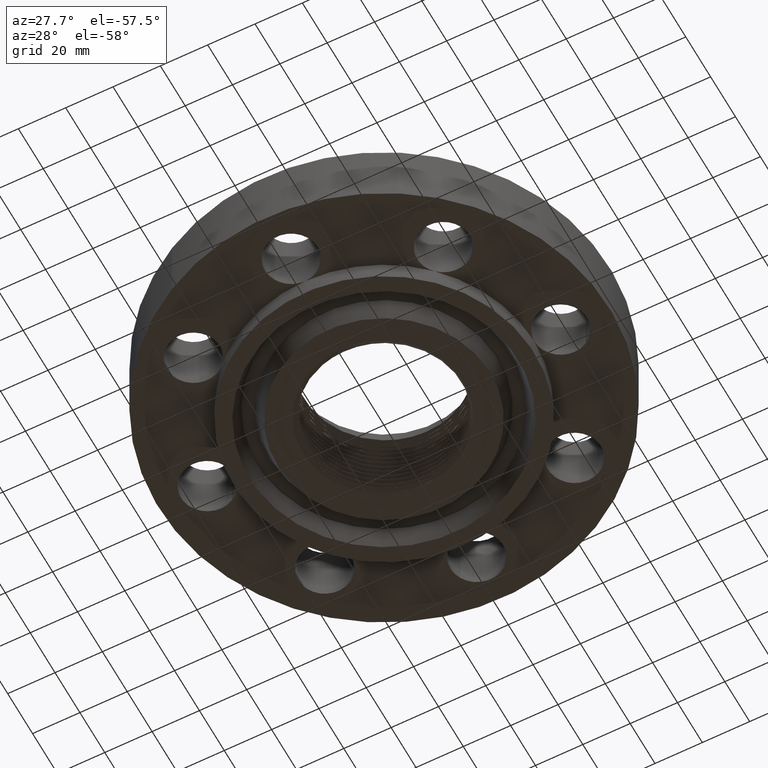
[diagram: clean part render]
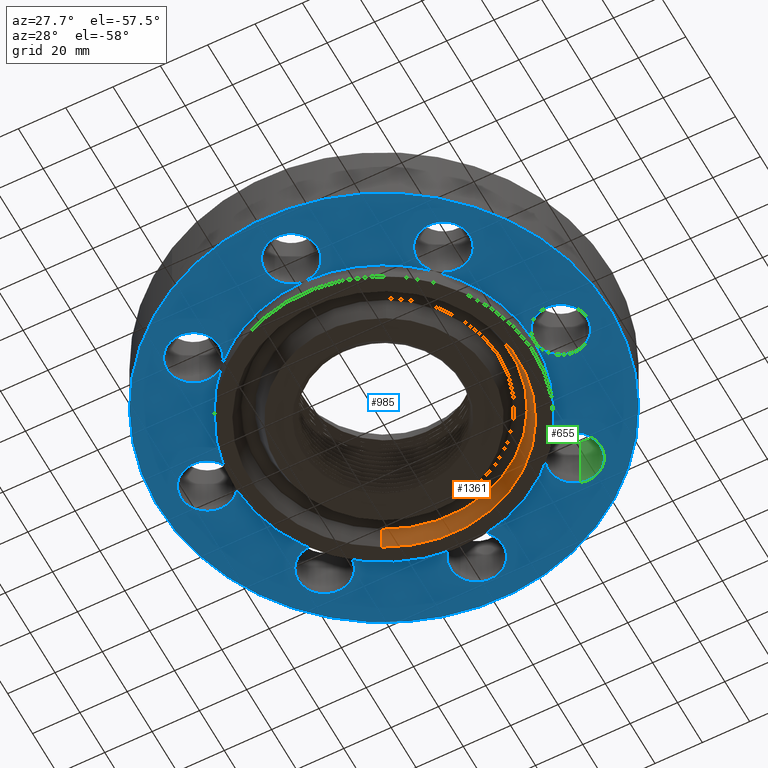
[diagram: same view with three faces highlighted in distinct colors, each labeled with its STEP entity id]
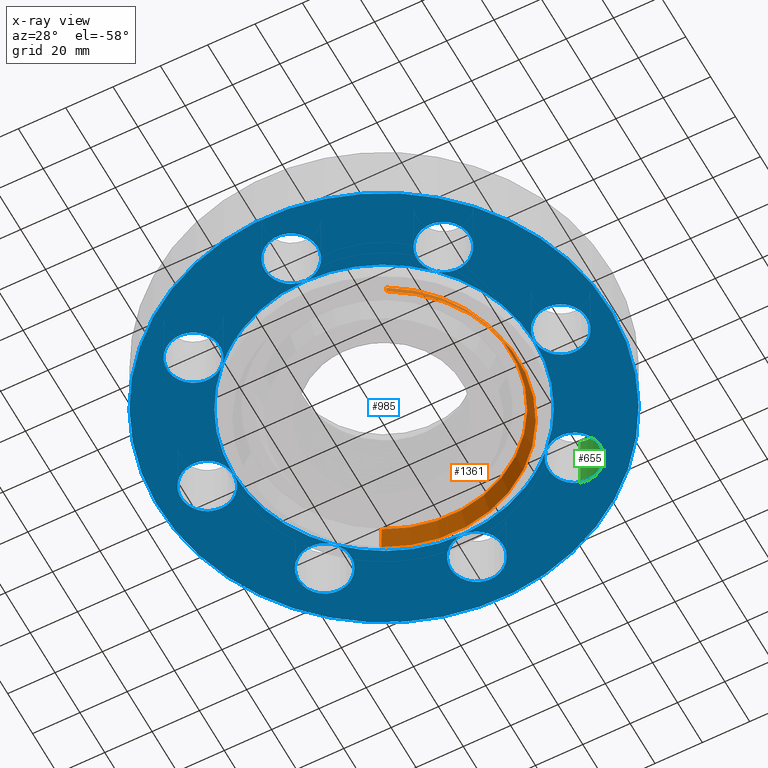
[diagram: x-ray of the same camera — body ghosted, the three highlighted faces saturated]
A machine part, auxiliary view with three faces highlighted in distinct colors.
The next image is the same camera in x-ray (body ghosted, the three faces saturated) — at least one of them is partly hidden behind the body in this view.
Their STEP definitions:

[orange] entity #1361 — the highlighted conical surface has half-angle 23 deg.
#388=AXIS2_PLACEMENT_3D('Circle Axis2P3D',#386,#387,$) ;
#1296=AXIS2_PLACEMENT_3D('Cone Axis2P3D',#1293,#1294,#1295) ;
#1317=AXIS2_PLACEMENT_3D('Circle Axis2P3D',#1315,#1316,$) ;
#381=CARTESIAN_POINT('Vertex',(1.07121643782,-1.96084853673,-0.312500000001)) ;
#383=CARTESIAN_POINT('Vertex',(-1.07121643782,1.96084853673,-0.312500000001)) ;
#386=CARTESIAN_POINT('Axis2P3D Location',(6.99353086378E-017,5.59482469102E-016,-0.312500000001)) ;
#1262=CARTESIAN_POINT('Vertex',(-1.01149606344,1.85153112468,-0.0190396522348)) ;
#1264=CARTESIAN_POINT('Vertex',(1.01149606344,-1.85153112468,-0.0190396522348)) ;
#1293=CARTESIAN_POINT('Axis2P3D Location',(0.,0.,-0.0190396522348)) ;
#1298=CARTESIAN_POINT('Line Origine',(-1.04135625063,1.90618983071,-0.165769826118)) ;
#1303=CARTESIAN_POINT('Line Origine',(1.04135625063,-1.90618983071,-0.165769826118)) ;
#1315=CARTESIAN_POINT('Axis2P3D Location',(0.,0.,-0.0190396522348)) ;
#387=DIRECTION('Axis2P3D Direction',(0.,0.,-0.0393700787402)) ;
#1294=DIRECTION('Axis2P3D Direction',(-0.,-0.,-0.0393700787402)) ;
#1295=DIRECTION('Axis2P3D XDirection',(-0.0188750212049,0.0345504945626,0.)) ;
#1299=DIRECTION('Vector Direction',(-0.00737505833565,0.0134999537303,-0.0362403485611)) ;
#1304=DIRECTION('Vector Direction',(0.00737505833565,-0.0134999537303,-0.0362403485611)) ;
#1316=DIRECTION('Axis2P3D Direction',(0.,0.,0.0393700787402)) ;
#1300=VECTOR('Line Direction',#1299,0.0393700787402) ;
#1305=VECTOR('Line Direction',#1304,0.0393700787402) ;
#1356=ORIENTED_EDGE('',*,*,#390,.T.) ;
#1357=ORIENTED_EDGE('',*,*,#1307,.T.) ;
#1358=ORIENTED_EDGE('',*,*,#1319,.T.) ;
#1359=ORIENTED_EDGE('',*,*,#1302,.F.) ;
#1361=ADVANCED_FACE('PartBody',(#1360),#1297,.F.) ;
#389=CIRCLE('generated circle',#388,2.23437500001) ;
#1318=CIRCLE('generated circle',#1317,2.10980847283) ;
#1297=CONICAL_SURFACE('Cone',#1296,2.10980847283,0.401425727959) ;
#390=EDGE_CURVE('',#384,#382,#389,.T.) ;
#1302=EDGE_CURVE('',#384,#1263,#1301,.F.) ;
#1307=EDGE_CURVE('',#382,#1265,#1306,.F.) ;
#1319=EDGE_CURVE('',#1265,#1263,#1318,.T.) ;
#1355=EDGE_LOOP('',(#1356,#1357,#1358,#1359)) ;
#1360=FACE_OUTER_BOUND('',#1355,.T.) ;
#1301=LINE('Line',#1298,#1300) ;
#1306=LINE('Line',#1303,#1305) ;
#382=VERTEX_POINT('',#381) ;
#384=VERTEX_POINT('',#383) ;
#1263=VERTEX_POINT('',#1262) ;
#1265=VERTEX_POINT('',#1264) ;

[blue] entity #985 — the highlighted planar face has unit normal (0, 0, -1).
#412=AXIS2_PLACEMENT_3D('Circle Axis2P3D',#410,#411,$) ;
#419=AXIS2_PLACEMENT_3D('Circle Axis2P3D',#417,#418,$) ;
#446=AXIS2_PLACEMENT_3D('Circle Axis2P3D',#444,#445,$) ;
#477=AXIS2_PLACEMENT_3D('Circle Axis2P3D',#475,#476,$) ;
#484=AXIS2_PLACEMENT_3D('Circle Axis2P3D',#482,#483,$) ;
#511=AXIS2_PLACEMENT_3D('Circle Axis2P3D',#509,#510,$) ;
#542=AXIS2_PLACEMENT_3D('Circle Axis2P3D',#540,#541,$) ;
#549=AXIS2_PLACEMENT_3D('Circle Axis2P3D',#547,#548,$) ;
#576=AXIS2_PLACEMENT_3D('Circle Axis2P3D',#574,#575,$) ;
#607=AXIS2_PLACEMENT_3D('Circle Axis2P3D',#605,#606,$) ;
#614=AXIS2_PLACEMENT_3D('Circle Axis2P3D',#612,#613,$) ;
#641=AXIS2_PLACEMENT_3D('Circle Axis2P3D',#639,#640,$) ;
#672=AXIS2_PLACEMENT_3D('Circle Axis2P3D',#670,#671,$) ;
#679=AXIS2_PLACEMENT_3D('Circle Axis2P3D',#677,#678,$) ;
#706=AXIS2_PLACEMENT_3D('Circle Axis2P3D',#704,#705,$) ;
#737=AXIS2_PLACEMENT_3D('Circle Axis2P3D',#735,#736,$) ;
#744=AXIS2_PLACEMENT_3D('Circle Axis2P3D',#742,#743,$) ;
#771=AXIS2_PLACEMENT_3D('Circle Axis2P3D',#769,#770,$) ;
#802=AXIS2_PLACEMENT_3D('Circle Axis2P3D',#800,#801,$) ;
#809=AXIS2_PLACEMENT_3D('Circle Axis2P3D',#807,#808,$) ;
#836=AXIS2_PLACEMENT_3D('Circle Axis2P3D',#834,#835,$) ;
#854=AXIS2_PLACEMENT_3D('Plane Axis2P3D',#851,#852,#853) ;
#858=AXIS2_PLACEMENT_3D('Circle Axis2P3D',#856,#857,$) ;
#867=AXIS2_PLACEMENT_3D('Circle Axis2P3D',#865,#866,$) ;
#876=AXIS2_PLACEMENT_3D('Circle Axis2P3D',#874,#875,$) ;
#881=AXIS2_PLACEMENT_3D('Circle Axis2P3D',#879,#880,$) ;
#888=AXIS2_PLACEMENT_3D('Circle Axis2P3D',#886,#887,$) ;
#895=AXIS2_PLACEMENT_3D('Circle Axis2P3D',#893,#894,$) ;
#902=AXIS2_PLACEMENT_3D('Circle Axis2P3D',#900,#901,$) ;
#909=AXIS2_PLACEMENT_3D('Circle Axis2P3D',#907,#908,$) ;
#914=AXIS2_PLACEMENT_3D('Circle Axis2P3D',#912,#913,$) ;
#919=AXIS2_PLACEMENT_3D('Circle Axis2P3D',#917,#918,$) ;
#924=AXIS2_PLACEMENT_3D('Circle Axis2P3D',#922,#923,$) ;
#929=AXIS2_PLACEMENT_3D('Circle Axis2P3D',#927,#928,$) ;
#936=AXIS2_PLACEMENT_3D('Circle Axis2P3D',#934,#935,$) ;
#941=AXIS2_PLACEMENT_3D('Circle Axis2P3D',#939,#940,$) ;
#946=AXIS2_PLACEMENT_3D('Circle Axis2P3D',#944,#945,$) ;
#405=CARTESIAN_POINT('Vertex',(2.72905276303,-0.386136327233,0.)) ;
#410=CARTESIAN_POINT('Axis2P3D Location',(2.94000000001,-3.79459389627E-016,0.)) ;
#414=CARTESIAN_POINT('Vertex',(2.50000000001,2.79741234551E-016,0.)) ;
#417=CARTESIAN_POINT('Axis2P3D Location',(2.94000000001,-3.79459389627E-016,0.)) ;
#421=CARTESIAN_POINT('Vertex',(3.150947237,0.386136327233,0.)) ;
#444=CARTESIAN_POINT('Axis2P3D Location',(2.94000000001,-3.79459389627E-016,0.)) ;
#470=CARTESIAN_POINT('Vertex',(-2.2027713304,-1.6566920995,0.)) ;
#475=CARTESIAN_POINT('Axis2P3D Location',(-2.0788939367,-2.0788939367,0.)) ;
#479=CARTESIAN_POINT('Vertex',(-1.76776695297,-1.76776695297,0.)) ;
#482=CARTESIAN_POINT('Axis2P3D Location',(-2.0788939367,-2.0788939367,0.)) ;
#486=CARTESIAN_POINT('Vertex',(-1.95501654299,-2.50109577389,0.)) ;
#509=CARTESIAN_POINT('Axis2P3D Location',(-2.0788939367,-2.0788939367,0.)) ;
#535=CARTESIAN_POINT('Vertex',(-2.72905276303,0.386136327233,0.)) ;
#540=CARTESIAN_POINT('Axis2P3D Location',(-2.94000000001,-5.40069238426E-016,0.)) ;
#544=CARTESIAN_POINT('Vertex',(-2.50000000001,-8.39223703654E-016,0.)) ;
#547=CARTESIAN_POINT('Axis2P3D Location',(-2.94000000001,-5.40069238426E-016,0.)) ;
#551=CARTESIAN_POINT('Vertex',(-3.150947237,-0.386136327233,0.)) ;
#574=CARTESIAN_POINT('Axis2P3D Location',(-2.94000000001,-5.40069238426E-016,0.)) ;
#600=CARTESIAN_POINT('Vertex',(2.2027713304,1.6566920995,0.)) ;
#605=CARTESIAN_POINT('Axis2P3D Location',(2.0788939367,2.0788939367,0.)) ;
#609=CARTESIAN_POINT('Vertex',(1.76776695297,1.76776695297,0.)) ;
#612=CARTESIAN_POINT('Axis2P3D Location',(2.0788939367,2.0788939367,0.)) ;
#616=CARTESIAN_POINT('Vertex',(1.95501654299,2.50109577389,0.)) ;
#639=CARTESIAN_POINT('Axis2P3D Location',(2.0788939367,2.0788939367,0.)) ;
#665=CARTESIAN_POINT('Vertex',(1.6566920995,-2.2027713304,0.)) ;
#670=CARTESIAN_POINT('Axis2P3D Location',(2.0788939367,-2.0788939367,0.)) ;
#674=CARTESIAN_POINT('Vertex',(1.76776695297,-1.76776695297,0.)) ;
#677=CARTESIAN_POINT('Axis2P3D Location',(2.0788939367,-2.0788939367,0.)) ;
#681=CARTESIAN_POINT('Vertex',(2.50109577389,-1.95501654299,0.)) ;
#704=CARTESIAN_POINT('Axis2P3D Location',(2.0788939367,-2.0788939367,0.)) ;
#730=CARTESIAN_POINT('Vertex',(-1.6566920995,2.2027713304,0.)) ;
#735=CARTESIAN_POINT('Axis2P3D Location',(-2.0788939367,2.0788939367,0.)) ;
#739=CARTESIAN_POINT('Vertex',(-1.76776695297,1.76776695297,0.)) ;
#742=CARTESIAN_POINT('Axis2P3D Location',(-2.0788939367,2.0788939367,0.)) ;
#746=CARTESIAN_POINT('Vertex',(-2.50109577389,1.95501654299,0.)) ;
#769=CARTESIAN_POINT('Axis2P3D Location',(-2.0788939367,2.0788939367,0.)) ;
#795=CARTESIAN_POINT('Vertex',(-0.386136327233,-2.72905276303,0.)) ;
#800=CARTESIAN_POINT('Axis2P3D Location',(3.60046158951E-016,-2.94000000001,0.)) ;
#804=CARTESIAN_POINT('Vertex',(3.09971815926E-016,-2.50000000001,0.)) ;
#807=CARTESIAN_POINT('Axis2P3D Location',(3.60046158951E-016,-2.94000000001,0.)) ;
#811=CARTESIAN_POINT('Vertex',(0.386136327233,-3.150947237,0.)) ;
#834=CARTESIAN_POINT('Axis2P3D Location',(3.60046158951E-016,-2.94000000001,0.)) ;
#851=CARTESIAN_POINT('Axis2P3D Location',(0.,2.50000000001,0.)) ;
#856=CARTESIAN_POINT('Axis2P3D Location',(0.,0.,0.)) ;
#860=CARTESIAN_POINT('Vertex',(-1.79784576977,-3.2909346071,4.19611851827E-016)) ;
#862=CARTESIAN_POINT('Vertex',(1.79784576977,3.2909346071,4.19611851827E-016)) ;
#865=CARTESIAN_POINT('Axis2P3D Location',(0.,0.,0.)) ;
#874=CARTESIAN_POINT('Axis2P3D Location',(0.,0.,0.)) ;
#879=CARTESIAN_POINT('Axis2P3D Location',(0.,0.,0.)) ;
#883=CARTESIAN_POINT('Vertex',(1.19856384652,2.19395640473,1.39870617276E-016)) ;
#886=CARTESIAN_POINT('Axis2P3D Location',(0.,0.,0.)) ;
#890=CARTESIAN_POINT('Vertex',(7.81021824778E-015,2.50000000001,1.39870617276E-016)) ;
#893=CARTESIAN_POINT('Axis2P3D Location',(-8.74191357973E-017,2.94000000001,0.)) ;
#897=CARTESIAN_POINT('Vertex',(0.386136327233,2.72905276303,0.)) ;
#900=CARTESIAN_POINT('Axis2P3D Location',(8.74191357973E-017,2.94000000001,0.)) ;
#904=CARTESIAN_POINT('Vertex',(-0.386136327233,3.150947237,0.)) ;
#907=CARTESIAN_POINT('Axis2P3D Location',(-8.74191357973E-017,2.94000000001,0.)) ;
#912=CARTESIAN_POINT('Axis2P3D Location',(0.,0.,0.)) ;
#917=CARTESIAN_POINT('Axis2P3D Location',(0.,0.,0.)) ;
#922=CARTESIAN_POINT('Axis2P3D Location',(0.,0.,0.)) ;
#927=CARTESIAN_POINT('Axis2P3D Location',(0.,0.,0.)) ;
#931=CARTESIAN_POINT('Vertex',(-1.19856384652,-2.19395640473,1.39870617276E-016)) ;
#934=CARTESIAN_POINT('Axis2P3D Location',(0.,0.,0.)) ;
#939=CARTESIAN_POINT('Axis2P3D Location',(0.,0.,0.)) ;
#944=CARTESIAN_POINT('Axis2P3D Location',(0.,0.,0.)) ;
#411=DIRECTION('Axis2P3D Direction',(0.,-0.,-0.0393700787402)) ;
#418=DIRECTION('Axis2P3D Direction',(0.,-0.,-0.0393700787402)) ;
#445=DIRECTION('Axis2P3D Direction',(0.,-0.,-0.0393700787402)) ;
#476=DIRECTION('Axis2P3D Direction',(0.,0.,-0.0393700787402)) ;
#483=DIRECTION('Axis2P3D Direction',(0.,0.,-0.0393700787402)) ;
#510=DIRECTION('Axis2P3D Direction',(0.,0.,-0.0393700787402)) ;
#541=DIRECTION('Axis2P3D Direction',(0.,0.,-0.0393700787402)) ;
#548=DIRECTION('Axis2P3D Direction',(0.,0.,-0.0393700787402)) ;
#575=DIRECTION('Axis2P3D Direction',(0.,0.,-0.0393700787402)) ;
#606=DIRECTION('Axis2P3D Direction',(0.,-0.,-0.0393700787402)) ;
#613=DIRECTION('Axis2P3D Direction',(0.,-0.,-0.0393700787402)) ;
#640=DIRECTION('Axis2P3D Direction',(0.,-0.,-0.0393700787402)) ;
#671=DIRECTION('Axis2P3D Direction',(-0.,0.,-0.0393700787402)) ;
#678=DIRECTION('Axis2P3D Direction',(-0.,0.,-0.0393700787402)) ;
#705=DIRECTION('Axis2P3D Direction',(-0.,0.,-0.0393700787402)) ;
#736=DIRECTION('Axis2P3D Direction',(0.,0.,-0.0393700787402)) ;
#743=DIRECTION('Axis2P3D Direction',(0.,0.,-0.0393700787402)) ;
#770=DIRECTION('Axis2P3D Direction',(0.,0.,-0.0393700787402)) ;
#801=DIRECTION('Axis2P3D Direction',(-0.,0.,-0.0393700787402)) ;
#808=DIRECTION('Axis2P3D Direction',(-0.,0.,-0.0393700787402)) ;
#835=DIRECTION('Axis2P3D Direction',(-0.,0.,-0.0393700787402)) ;
#852=DIRECTION('Axis2P3D Direction',(0.,0.,-0.0393700787402)) ;
#853=DIRECTION('Axis2P3D XDirection',(0.0393700787402,0.,0.)) ;
#857=DIRECTION('Axis2P3D Direction',(0.,0.,-0.0393700787402)) ;
#866=DIRECTION('Axis2P3D Direction',(0.,0.,-0.0393700787402)) ;
#875=DIRECTION('Axis2P3D Direction',(0.,0.,-0.0393700787402)) ;
#880=DIRECTION('Axis2P3D Direction',(0.,0.,-0.0393700787402)) ;
#887=DIRECTION('Axis2P3D Direction',(0.,0.,-0.0393700787402)) ;
#894=DIRECTION('Axis2P3D Direction',(0.,0.,-0.0393700787402)) ;
#901=DIRECTION('Axis2P3D Direction',(0.,0.,-0.0393700787402)) ;
#908=DIRECTION('Axis2P3D Direction',(0.,0.,-0.0393700787402)) ;
#913=DIRECTION('Axis2P3D Direction',(0.,0.,-0.0393700787402)) ;
#918=DIRECTION('Axis2P3D Direction',(0.,0.,-0.0393700787402)) ;
#923=DIRECTION('Axis2P3D Direction',(0.,0.,-0.0393700787402)) ;
#928=DIRECTION('Axis2P3D Direction',(0.,0.,-0.0393700787402)) ;
#935=DIRECTION('Axis2P3D Direction',(0.,0.,-0.0393700787402)) ;
#940=DIRECTION('Axis2P3D Direction',(0.,0.,-0.0393700787402)) ;
#945=DIRECTION('Axis2P3D Direction',(0.,0.,-0.0393700787402)) ;
#871=ORIENTED_EDGE('',*,*,#864,.T.) ;
#872=ORIENTED_EDGE('',*,*,#869,.T.) ;
#950=ORIENTED_EDGE('',*,*,#416,.F.) ;
#951=ORIENTED_EDGE('',*,*,#448,.F.) ;
#952=ORIENTED_EDGE('',*,*,#423,.F.) ;
#953=ORIENTED_EDGE('',*,*,#878,.F.) ;
#954=ORIENTED_EDGE('',*,*,#611,.F.) ;
#955=ORIENTED_EDGE('',*,*,#643,.F.) ;
#956=ORIENTED_EDGE('',*,*,#618,.F.) ;
#957=ORIENTED_EDGE('',*,*,#885,.F.) ;
#958=ORIENTED_EDGE('',*,*,#892,.F.) ;
#959=ORIENTED_EDGE('',*,*,#899,.F.) ;
#960=ORIENTED_EDGE('',*,*,#906,.F.) ;
#961=ORIENTED_EDGE('',*,*,#911,.F.) ;
#962=ORIENTED_EDGE('',*,*,#916,.F.) ;
#963=ORIENTED_EDGE('',*,*,#741,.F.) ;
#964=ORIENTED_EDGE('',*,*,#773,.F.) ;
#965=ORIENTED_EDGE('',*,*,#748,.F.) ;
#966=ORIENTED_EDGE('',*,*,#921,.F.) ;
#967=ORIENTED_EDGE('',*,*,#546,.F.) ;
#968=ORIENTED_EDGE('',*,*,#578,.F.) ;
#969=ORIENTED_EDGE('',*,*,#553,.F.) ;
#970=ORIENTED_EDGE('',*,*,#926,.F.) ;
#971=ORIENTED_EDGE('',*,*,#481,.F.) ;
#972=ORIENTED_EDGE('',*,*,#513,.F.) ;
#973=ORIENTED_EDGE('',*,*,#488,.F.) ;
#974=ORIENTED_EDGE('',*,*,#933,.F.) ;
#975=ORIENTED_EDGE('',*,*,#938,.F.) ;
#976=ORIENTED_EDGE('',*,*,#806,.F.) ;
#977=ORIENTED_EDGE('',*,*,#838,.F.) ;
#978=ORIENTED_EDGE('',*,*,#813,.F.) ;
#979=ORIENTED_EDGE('',*,*,#943,.F.) ;
#980=ORIENTED_EDGE('',*,*,#676,.F.) ;
#981=ORIENTED_EDGE('',*,*,#708,.F.) ;
#982=ORIENTED_EDGE('',*,*,#683,.F.) ;
#983=ORIENTED_EDGE('',*,*,#948,.F.) ;
#984=FACE_BOUND('',#949,.T.) ;
#985=ADVANCED_FACE('PartBody',(#873,#984),#855,.T.) ;
#413=CIRCLE('generated circle',#412,0.440000000002) ;
#420=CIRCLE('generated circle',#419,0.440000000002) ;
#447=CIRCLE('generated circle',#446,0.440000000002) ;
#478=CIRCLE('generated circle',#477,0.440000000002) ;
#485=CIRCLE('generated circle',#484,0.440000000002) ;
#512=CIRCLE('generated circle',#511,0.440000000002) ;
#543=CIRCLE('generated circle',#542,0.440000000002) ;
#550=CIRCLE('generated circle',#549,0.440000000002) ;
#577=CIRCLE('generated circle',#576,0.440000000002) ;
#608=CIRCLE('generated circle',#607,0.440000000002) ;
#615=CIRCLE('generated circle',#614,0.440000000002) ;
#642=CIRCLE('generated circle',#641,0.440000000002) ;
#673=CIRCLE('generated circle',#672,0.440000000002) ;
#680=CIRCLE('generated circle',#679,0.440000000002) ;
#707=CIRCLE('generated circle',#706,0.440000000002) ;
#738=CIRCLE('generated circle',#737,0.440000000002) ;
#745=CIRCLE('generated circle',#744,0.440000000002) ;
#772=CIRCLE('generated circle',#771,0.440000000002) ;
#803=CIRCLE('generated circle',#802,0.440000000002) ;
#810=CIRCLE('generated circle',#809,0.440000000002) ;
#837=CIRCLE('generated circle',#836,0.440000000002) ;
#859=CIRCLE('generated circle',#858,3.75000000002) ;
#868=CIRCLE('generated circle',#867,3.75000000002) ;
#877=CIRCLE('generated circle',#876,2.50000000001) ;
#882=CIRCLE('generated circle',#881,2.50000000001) ;
#889=CIRCLE('generated circle',#888,2.50000000001) ;
#896=CIRCLE('generated circle',#895,0.440000000002) ;
#903=CIRCLE('generated circle',#902,0.440000000002) ;
#910=CIRCLE('generated circle',#909,0.440000000002) ;
#915=CIRCLE('generated circle',#914,2.50000000001) ;
#920=CIRCLE('generated circle',#919,2.50000000001) ;
#925=CIRCLE('generated circle',#924,2.50000000001) ;
#930=CIRCLE('generated circle',#929,2.50000000001) ;
#937=CIRCLE('generated circle',#936,2.50000000001) ;
#942=CIRCLE('generated circle',#941,2.50000000001) ;
#947=CIRCLE('generated circle',#946,2.50000000001) ;
#416=EDGE_CURVE('',#406,#415,#413,.T.) ;
#423=EDGE_CURVE('',#415,#422,#420,.T.) ;
#448=EDGE_CURVE('',#422,#406,#447,.T.) ;
#481=EDGE_CURVE('',#471,#480,#478,.T.) ;
#488=EDGE_CURVE('',#480,#487,#485,.T.) ;
#513=EDGE_CURVE('',#487,#471,#512,.T.) ;
#546=EDGE_CURVE('',#536,#545,#543,.T.) ;
#553=EDGE_CURVE('',#545,#552,#550,.T.) ;
#578=EDGE_CURVE('',#552,#536,#577,.T.) ;
#611=EDGE_CURVE('',#601,#610,#608,.T.) ;
#618=EDGE_CURVE('',#610,#617,#615,.T.) ;
#643=EDGE_CURVE('',#617,#601,#642,.T.) ;
#676=EDGE_CURVE('',#666,#675,#673,.T.) ;
#683=EDGE_CURVE('',#675,#682,#680,.T.) ;
#708=EDGE_CURVE('',#682,#666,#707,.T.) ;
#741=EDGE_CURVE('',#731,#740,#738,.T.) ;
#748=EDGE_CURVE('',#740,#747,#745,.T.) ;
#773=EDGE_CURVE('',#747,#731,#772,.T.) ;
#806=EDGE_CURVE('',#796,#805,#803,.T.) ;
#813=EDGE_CURVE('',#805,#812,#810,.T.) ;
#838=EDGE_CURVE('',#812,#796,#837,.T.) ;
#864=EDGE_CURVE('',#861,#863,#859,.T.) ;
#869=EDGE_CURVE('',#863,#861,#868,.T.) ;
#878=EDGE_CURVE('',#610,#415,#877,.T.) ;
#885=EDGE_CURVE('',#884,#610,#882,.T.) ;
#892=EDGE_CURVE('',#891,#884,#889,.T.) ;
#899=EDGE_CURVE('',#898,#891,#896,.T.) ;
#906=EDGE_CURVE('',#905,#898,#903,.T.) ;
#911=EDGE_CURVE('',#891,#905,#910,.T.) ;
#916=EDGE_CURVE('',#740,#891,#915,.T.) ;
#921=EDGE_CURVE('',#545,#740,#920,.T.) ;
#926=EDGE_CURVE('',#480,#545,#925,.T.) ;
#933=EDGE_CURVE('',#932,#480,#930,.T.) ;
#938=EDGE_CURVE('',#805,#932,#937,.T.) ;
#943=EDGE_CURVE('',#675,#805,#942,.T.) ;
#948=EDGE_CURVE('',#415,#675,#947,.T.) ;
#870=EDGE_LOOP('',(#871,#872)) ;
#949=EDGE_LOOP('',(#950,#951,#952,#953,#954,#955,#956,#957,#958,#959,#960,#961,#962,#963,#964,#965,#966,#967,#968,#969,#970,#971,#972,#973,#974,#975,#976,#977,#978,#979,#980,#981,#982,#983)) ;
#873=FACE_OUTER_BOUND('',#870,.T.) ;
#855=PLANE('',#854) ;
#406=VERTEX_POINT('',#405) ;
#415=VERTEX_POINT('',#414) ;
#422=VERTEX_POINT('',#421) ;
#471=VERTEX_POINT('',#470) ;
#480=VERTEX_POINT('',#479) ;
#487=VERTEX_POINT('',#486) ;
#536=VERTEX_POINT('',#535) ;
#545=VERTEX_POINT('',#544) ;
#552=VERTEX_POINT('',#551) ;
#601=VERTEX_POINT('',#600) ;
#610=VERTEX_POINT('',#609) ;
#617=VERTEX_POINT('',#616) ;
#666=VERTEX_POINT('',#665) ;
#675=VERTEX_POINT('',#674) ;
#682=VERTEX_POINT('',#681) ;
#731=VERTEX_POINT('',#730) ;
#740=VERTEX_POINT('',#739) ;
#747=VERTEX_POINT('',#746) ;
#796=VERTEX_POINT('',#795) ;
#805=VERTEX_POINT('',#804) ;
#812=VERTEX_POINT('',#811) ;
#861=VERTEX_POINT('',#860) ;
#863=VERTEX_POINT('',#862) ;
#884=VERTEX_POINT('',#883) ;
#891=VERTEX_POINT('',#890) ;
#898=VERTEX_POINT('',#897) ;
#905=VERTEX_POINT('',#904) ;
#932=VERTEX_POINT('',#931) ;

[green] entity #655 — the highlighted cylindrical surface (edge-blend (fillet) strip) has radius 11.176 mm, axis along (0, -0, -1).
#594=AXIS2_PLACEMENT_3D('Cylinder Axis2P3D',#591,#592,#593) ;
#641=AXIS2_PLACEMENT_3D('Circle Axis2P3D',#639,#640,$) ;
#646=AXIS2_PLACEMENT_3D('Circle Axis2P3D',#644,#645,$) ;
#591=CARTESIAN_POINT('Axis2P3D Location',(2.0788939367,2.0788939367,1.11606299213)) ;
#596=CARTESIAN_POINT('Line Origine',(2.2027713304,1.6566920995,0.560000000002)) ;
#600=CARTESIAN_POINT('Vertex',(2.2027713304,1.6566920995,0.)) ;
#602=CARTESIAN_POINT('Vertex',(2.2027713304,1.6566920995,1.12)) ;
#616=CARTESIAN_POINT('Vertex',(1.95501654299,2.50109577389,0.)) ;
#619=CARTESIAN_POINT('Line Origine',(1.95501654299,2.50109577389,0.560000000002)) ;
#623=CARTESIAN_POINT('Vertex',(1.95501654299,2.50109577389,1.12)) ;
#639=CARTESIAN_POINT('Axis2P3D Location',(2.0788939367,2.0788939367,0.)) ;
#644=CARTESIAN_POINT('Axis2P3D Location',(2.0788939367,2.0788939367,1.12)) ;
#592=DIRECTION('Axis2P3D Direction',(0.,-0.,-0.0393700787402)) ;
#593=DIRECTION('Axis2P3D XDirection',(-0.0110842335096,0.0377775444876,-0.)) ;
#597=DIRECTION('Vector Direction',(0.,0.,-0.0393700787402)) ;
#620=DIRECTION('Vector Direction',(0.,0.,-0.0393700787402)) ;
#640=DIRECTION('Axis2P3D Direction',(0.,-0.,-0.0393700787402)) ;
#645=DIRECTION('Axis2P3D Direction',(0.,-0.,-0.0393700787402)) ;
#598=VECTOR('Line Direction',#597,0.0393700787402) ;
#621=VECTOR('Line Direction',#620,0.0393700787402) ;
#650=ORIENTED_EDGE('',*,*,#625,.F.) ;
#651=ORIENTED_EDGE('',*,*,#643,.T.) ;
#652=ORIENTED_EDGE('',*,*,#604,.T.) ;
#653=ORIENTED_EDGE('',*,*,#648,.F.) ;
#655=ADVANCED_FACE('PartBody',(#654),#595,.F.) ;
#642=CIRCLE('generated circle',#641,0.440000000002) ;
#647=CIRCLE('generated circle',#646,0.440000000002) ;
#595=CYLINDRICAL_SURFACE('generated cylinder',#594,0.440000000002) ;
#604=EDGE_CURVE('',#601,#603,#599,.F.) ;
#625=EDGE_CURVE('',#617,#624,#622,.F.) ;
#643=EDGE_CURVE('',#617,#601,#642,.T.) ;
#648=EDGE_CURVE('',#624,#603,#647,.T.) ;
#649=EDGE_LOOP('',(#650,#651,#652,#653)) ;
#654=FACE_OUTER_BOUND('',#649,.T.) ;
#599=LINE('Line',#596,#598) ;
#622=LINE('Line',#619,#621) ;
#601=VERTEX_POINT('',#600) ;
#603=VERTEX_POINT('',#602) ;
#617=VERTEX_POINT('',#616) ;
#624=VERTEX_POINT('',#623) ;